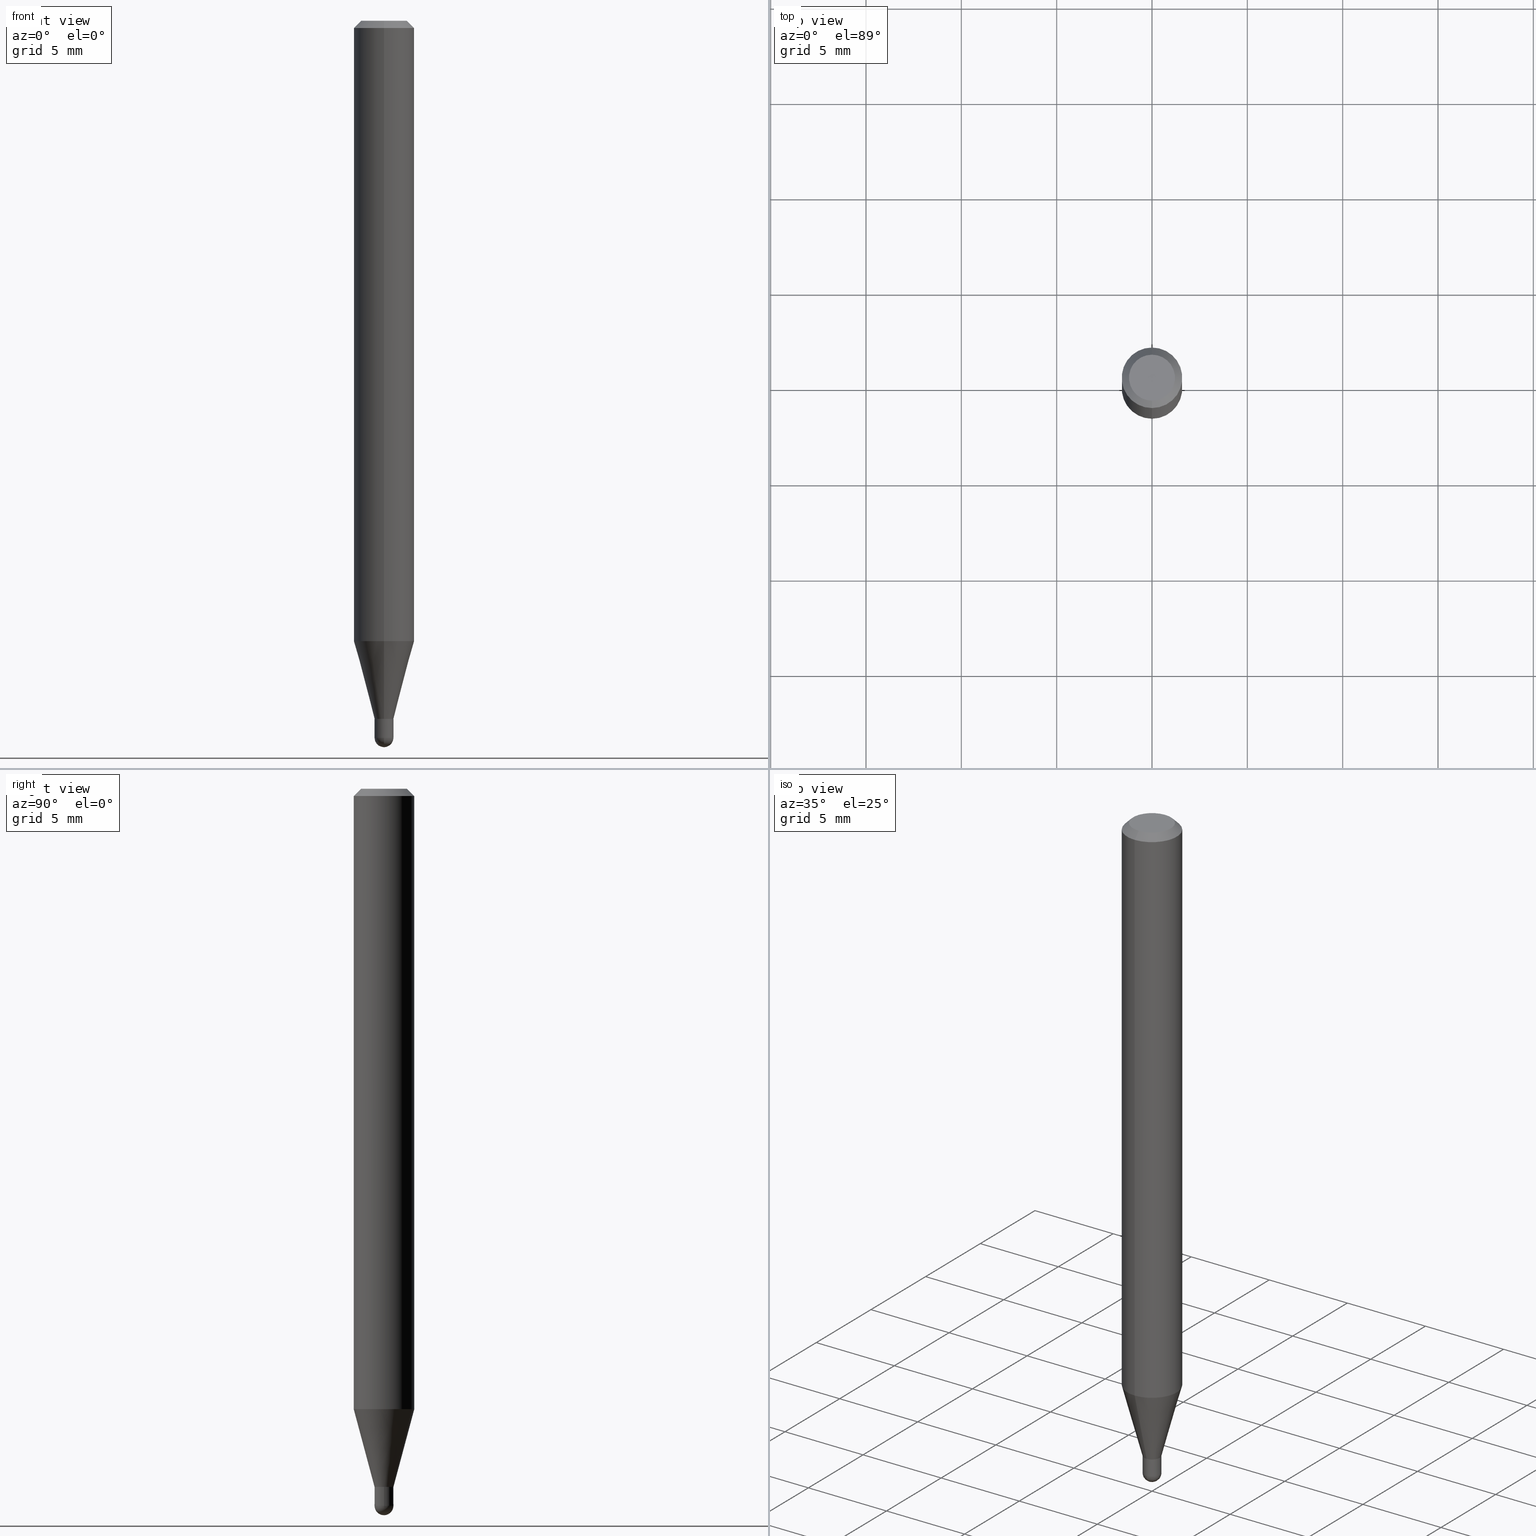
[diagram: canonical four-view strip — front | top / right | iso, engineering-drawing reading convention]
A machine part, canonical four-view strip (front | top / right | iso — engineering-drawing reading convention). The complete STEP part file that produces these views, byte-faithful:
ISO-10303-21;
HEADER;
FILE_DESCRIPTION (( 'STEP AP203' ),
    '1' );
FILE_NAME ('01396.STEP',
    '2024-03-07T20:20:00',
    ( '' ),
    ( '' ),
    'SwSTEP 2.0',
    'SolidWorks 2023',
    '' );
FILE_SCHEMA (( 'CONFIG_CONTROL_DESIGN' ));
ENDSEC;

DATA;
#1 = CIRCLE ( 'NONE', #137, 0.01949999999999999303 ) ;
#2 = CYLINDRICAL_SURFACE ( 'NONE', #18, 0.01949999999999992017 ) ;
#3 = ORIENTED_EDGE ( 'NONE', *, *, #442, .T. ) ;
#4 = CARTESIAN_POINT ( 'NONE',  ( 0.000000000000000000, 0.000000000000000000, 0.000000000000000000 ) ) ;
#5 = ORIENTED_EDGE ( 'NONE', *, *, #468, .F. ) ;
#6 = DIRECTION ( 'NONE',  ( -2.445468806185136597E-29, 3.491481338843145583E-15, 1.000000000000000000 ) ) ;
#7 = EDGE_CURVE ( 'NONE', #276, #39, #213, .T. ) ;
#8 = EDGE_LOOP ( 'NONE', ( #157, #43, #170, #509 ) ) ;
#9 = COORDINATED_UNIVERSAL_TIME_OFFSET ( 5, 0, .BEHIND. ) ;
#10 = FACE_OUTER_BOUND ( 'NONE', #76, .T. ) ;
#11 = CIRCLE ( 'NONE', #203, 0.01949999999999999303 ) ;
#12 = AXIS2_PLACEMENT_3D ( 'NONE', #214, #256, #99 ) ;
#13 = PERSON_AND_ORGANIZATION_ROLE ( 'creator' ) ;
#14 = DIRECTION ( 'NONE',  ( -2.445481119339966983E-29, 3.491463705704607270E-15, 1.000000000000000000 ) ) ;
#15 = APPROVAL_ROLE ( '' ) ;
#16 = CYLINDRICAL_SURFACE ( 'NONE', #201, 0.01949999999999999997 ) ;
#17 = CARTESIAN_POINT ( 'NONE',  ( 3.668221679009952927E-31, -5.237195558556913912E-17, -0.01500000000000000812 ) ) ;
#18 = AXIS2_PLACEMENT_3D ( 'NONE', #4, #164, #86 ) ;
#19 = PERSON_AND_ORGANIZATION_ROLE ( 'design_owner' ) ;
#20 = CARTESIAN_POINT ( 'NONE',  ( 3.525161033528562985E-29, -5.032944931773191280E-15, -1.441500000000000226 ) ) ;
#21 = PERSON_AND_ORGANIZATION_ROLE ( 'design_supplier' ) ;
#22 = DIRECTION ( 'NONE',  ( 2.445481119339966983E-29, -3.491463705704607270E-15, -1.000000000000000000 ) ) ;
#23 = EDGE_CURVE ( 'NONE', #234, #284, #141, .T. ) ;
#24 = APPROVAL_DATE_TIME ( #387, #453 ) ;
#25 = CARTESIAN_POINT ( 'NONE',  ( 4.440892098500936776E-16, 0.06249999999999551054, -1.281021815274543618 ) ) ;
#26 = ORIENTED_EDGE ( 'NONE', *, *, #332, .F. ) ;
#27 = AXIS2_PLACEMENT_3D ( 'NONE', #339, #417, #299 ) ;
#28 = AXIS2_PLACEMENT_3D ( 'NONE', #198, #359, #82 ) ;
#29 = DIRECTION ( 'NONE',  ( -2.445468806185136597E-29, 3.491481338843145583E-15, 1.000000000000000000 ) ) ;
#30 = ORIENTED_EDGE ( 'NONE', *, *, #287, .F. ) ;
#31 = CARTESIAN_POINT ( 'NONE',  ( 4.440892098500625669E-16, 0.06250000000000000000, -2.182164816065379544E-16 ) ) ;
#32 = APPROVAL ( #490, 'UNSPECIFIED' ) ;
#33 = DIRECTION ( 'NONE',  ( -2.445481119339966983E-29, 3.491463705704607270E-15, 1.000000000000000000 ) ) ;
#34 = ORIENTED_EDGE ( 'NONE', *, *, #104, .F. ) ;
#35 = AXIS2_PLACEMENT_3D ( 'NONE', #399, #405, #401 ) ;
#36 = CARTESIAN_POINT ( 'NONE',  ( 3.618848993293195667E-29, -5.171526183415615213E-15, -1.480500000000000149 ) ) ;
#37 = VERTEX_POINT ( 'NONE', #300 ) ;
#38 = DIRECTION ( 'NONE',  ( -1.000000000000000000, 6.982962677686265922E-15, -4.883557194083112340E-29 ) ) ;
#39 = VERTEX_POINT ( 'NONE', #414 ) ;
#40 = PRODUCT_DEFINITION ( 'UNKNOWN', '', #345, #69 ) ;
#41 = ADVANCED_FACE ( 'NONE', ( #215 ), #16, .T. ) ;
#42 = LINE ( 'NONE', #435, #314 ) ;
#43 = ORIENTED_EDGE ( 'NONE', *, *, #424, .T. ) ;
#44 = FACE_OUTER_BOUND ( 'NONE', #324, .T. ) ;
#45 = CIRCLE ( 'NONE', #87, 0.04749999999999999362 ) ;
#46 = LOCAL_TIME ( 15, 20, 0.000000000000000000, #259 ) ;
#47 = ORIENTED_EDGE ( 'NONE', *, *, #133, .F. ) ;
#48 = EDGE_CURVE ( 'NONE', #286, #284, #447, .T. ) ;
#49 = FACE_OUTER_BOUND ( 'NONE', #329, .T. ) ;
#50 = ORIENTED_EDGE ( 'NONE', *, *, #291, .T. ) ;
#51 =( NAMED_UNIT ( * ) PLANE_ANGLE_UNIT ( ) SI_UNIT ( $, .RADIAN. ) );
#52 = ORIENTED_EDGE ( 'NONE', *, *, #373, .T. ) ;
#53 = LENGTH_MEASURE_WITH_UNIT ( LENGTH_MEASURE( 0.02539999999999999897 ), #250 );
#54 = AXIS2_PLACEMENT_3D ( 'NONE', #212, #14, #377 ) ;
#55 = VERTEX_POINT ( 'NONE', #173 ) ;
#56 = AXIS2_PLACEMENT_3D ( 'NONE', #471, #6, #511 ) ;
#57 = CALENDAR_DATE ( 2024, 7, 3 ) ;
#58 = CARTESIAN_POINT ( 'NONE',  ( 0.000000000000000000, 0.000000000000000000, 0.000000000000000000 ) ) ;
#59 = EDGE_CURVE ( 'NONE', #286, #39, #144, .T. ) ;
#60 = APPROVAL_DATE_TIME ( #169, #32 ) ;
#61 = CARTESIAN_POINT ( 'NONE',  ( 3.132714662716507044E-29, -4.472641174246900354E-15, -1.281021815274543396 ) ) ;
#62 = DIRECTION ( 'NONE',  ( -2.445481119339966983E-29, 3.491463705704607270E-15, 1.000000000000000000 ) ) ;
#63 = CIRCLE ( 'NONE', #482, 0.06250000000000000000 ) ;
#64 = AXIS2_PLACEMENT_3D ( 'NONE', #253, #416, #451 ) ;
#65 = EDGE_CURVE ( 'NONE', #163, #39, #463, .T. ) ;
#66 = DIRECTION ( 'NONE',  ( -2.445468806185136597E-29, 3.491481338843145583E-15, 1.000000000000000000 ) ) ;
#67 = CARTESIAN_POINT ( 'NONE',  ( 3.665701847881856207E-29, -5.240804100152225240E-15, -1.500000000000000444 ) ) ;
#68 = PERSON_AND_ORGANIZATION ( #355, #315 ) ;
#69 = DESIGN_CONTEXT ( 'detailed design', #229, 'design' ) ;
#70 = DIRECTION ( 'NONE',  ( -6.982962677686266711E-15, -1.000000000000000000, 0.000000000000000000 ) ) ;
#71 = CIRCLE ( 'NONE', #304, 0.01949999999999992017 ) ;
#72 = CARTESIAN_POINT ( 'NONE',  ( -1.361677722148463895E-16, -0.01950000000000495434, -1.441500000000000448 ) ) ;
#73 = ORIENTED_EDGE ( 'NONE', *, *, #142, .T. ) ;
#74 = ADVANCED_FACE ( 'NONE', ( #487 ), #119, .T. ) ;
#75 = LINE ( 'NONE', #145, #238 ) ;
#76 = EDGE_LOOP ( 'NONE', ( #34, #237 ) ) ;
#77 = CARTESIAN_POINT ( 'NONE',  ( 3.525161033528562985E-29, -5.032944931773191280E-15, -1.441500000000000226 ) ) ;
#78 = DIRECTION ( 'NONE',  ( -2.445481119339966983E-29, 3.491463705704607270E-15, 1.000000000000000000 ) ) ;
#79 = VERTEX_POINT ( 'NONE', #336 ) ;
#80 = CARTESIAN_POINT ( 'NONE',  ( -0.01949999999999999997, 1.385558334732195360E-16, -9.591923425997065392E-31 ) ) ;
#81 = ORIENTED_EDGE ( 'NONE', *, *, #470, .T. ) ;
#82 = DIRECTION ( 'NONE',  ( -6.982962677686266711E-15, -1.000000000000000000, 3.491463705704607270E-15 ) ) ;
#83 = ORIENTED_EDGE ( 'NONE', *, *, #59, .F. ) ;
#84 = ADVANCED_FACE ( 'NONE', ( #10 ), #135, .F. ) ;
#85 = CIRCLE ( 'NONE', #152, 0.01949999999999992017 ) ;
#86 = DIRECTION ( 'NONE',  ( -6.982962677686266711E-15, -1.000000000000000000, 3.491463705704607270E-15 ) ) ;
#87 = AXIS2_PLACEMENT_3D ( 'NONE', #325, #479, #218 ) ;
#88 = ORIENTED_EDGE ( 'NONE', *, *, #415, .T. ) ;
#89 = DIRECTION ( 'NONE',  ( 0.000000000000000000, 0.000000000000000000, 1.000000000000000000 ) ) ;
#90 = EDGE_LOOP ( 'NONE', ( #207, #402, #327, #122 ) ) ;
#91 = EDGE_CURVE ( 'NONE', #284, #286, #63, .T. ) ;
#92 = PERSON_AND_ORGANIZATION ( #355, #315 ) ;
#93 = CARTESIAN_POINT ( 'NONE',  ( 1.361677722149174363E-16, 0.01949999999999496580, -1.441500000000000226 ) ) ;
#94 = CALENDAR_DATE ( 2024, 7, 3 ) ;
#95 = CC_DESIGN_PERSON_AND_ORGANIZATION_ASSIGNMENT ( #68, #348, ( #338 ) ) ;
#96 = DIRECTION ( 'NONE',  ( 1.839019923739647253E-15, 0.2588190451025315642, 0.9659258262890653146 ) ) ;
#97 = AXIS2_PLACEMENT_3D ( 'NONE', #187, #305, #70 ) ;
#98 = CC_DESIGN_APPROVAL ( #32, ( #40 ) ) ;
#99 = DIRECTION ( 'NONE',  ( 1.000000000000000000, -6.982962677686260400E-15, 0.000000000000000000 ) ) ;
#100 = ORIENTED_EDGE ( 'NONE', *, *, #476, .F. ) ;
#101 = PRODUCT_DEFINITION_SHAPE ( 'NONE', 'NONE',  #40 ) ;
#102 = DIRECTION ( 'NONE',  ( -2.445481119339966983E-29, 3.491463705704607270E-15, 1.000000000000000000 ) ) ;
#103 = CARTESIAN_POINT ( 'NONE',  ( 3.525161033528562985E-29, -5.032944931773191280E-15, -1.441500000000000226 ) ) ;
#104 = EDGE_CURVE ( 'NONE', #364, #79, #350, .T. ) ;
#105 = CARTESIAN_POINT ( 'NONE',  ( 3.620516567557095727E-29, -5.169138122157277171E-15, -1.480500000000000149 ) ) ;
#106 = AXIS2_PLACEMENT_3D ( 'NONE', #267, #342, #391 ) ;
#107 = FACE_OUTER_BOUND ( 'NONE', #398, .T. ) ;
#108 = CARTESIAN_POINT ( 'NONE',  ( 4.440892098500940720E-16, 0.06249999999999993755, -0.01500000000000022669 ) ) ;
#109 = ORIENTED_EDGE ( 'NONE', *, *, #23, .T. ) ;
#110 = CARTESIAN_POINT ( 'NONE',  ( 2.913225216616741220E-16, 0.01949999999999488948, -1.441500000000000448 ) ) ;
#111 = ORIENTED_EDGE ( 'NONE', *, *, #133, .T. ) ;
#112 = CIRCLE ( 'NONE', #378, 0.01950000000000007977 ) ;
#113 = CARTESIAN_POINT ( 'NONE',  ( 3.668221679009952927E-31, -5.237195558556913912E-17, -0.01500000000000000812 ) ) ;
#114 = CARTESIAN_POINT ( 'NONE',  ( 0.000000000000000000, 0.000000000000000000, 0.000000000000000000 ) ) ;
#115 = ORIENTED_EDGE ( 'NONE', *, *, #503, .T. ) ;
#116 = ADVANCED_FACE ( 'NONE', ( #449 ), #340, .T. ) ;
#117 = CARTESIAN_POINT ( 'NONE',  ( 0.01949999999999999303, -5.237222008264718177E-15, -1.480500000000000149 ) ) ;
#118 = EDGE_LOOP ( 'NONE', ( #360, #165, #321, #240 ) ) ;
#119 = CONICAL_SURFACE ( 'NONE', #410, 0.06250000000000000000, 0.7853981633974483900 ) ;
#120 = VECTOR ( 'NONE', #466, 39.37007874015748143 ) ;
#121 = APPROVAL_PERSON_ORGANIZATION ( #298, #32, #413 ) ;
#122 = ORIENTED_EDGE ( 'NONE', *, *, #142, .F. ) ;
#123 = CARTESIAN_POINT ( 'NONE',  ( 0.000000000000000000, 0.000000000000000000, 0.000000000000000000 ) ) ;
#124 = ORIENTED_EDGE ( 'NONE', *, *, #415, .F. ) ;
#125 = SPHERICAL_SURFACE ( 'NONE', #35, 0.01950000000000007977 ) ;
#126 = ORIENTED_EDGE ( 'NONE', *, *, #508, .F. ) ;
#127 = CIRCLE ( 'NONE', #362, 0.01949999999999999997 ) ;
#128 = DIRECTION ( 'NONE',  ( -6.982962677686266711E-15, -1.000000000000000000, 0.000000000000000000 ) ) ;
#129 = ORIENTED_EDGE ( 'NONE', *, *, #7, .T. ) ;
#130 = ADVANCED_FACE ( 'NONE', ( #381 ), #296, .T. ) ;
#131 = APPROVAL_DATE_TIME ( #301, #459 ) ;
#132 = FACE_OUTER_BOUND ( 'NONE', #311, .T. ) ;
#133 = EDGE_CURVE ( 'NONE', #475, #37, #1, .T. ) ;
#134 = PERSON_AND_ORGANIZATION ( #355, #315 ) ;
#135 = PLANE ( 'NONE',  #182 ) ;
#136 = CARTESIAN_POINT ( 'NONE',  ( 0.000000000000000000, 0.000000000000000000, 0.000000000000000000 ) ) ;
#137 = AXIS2_PLACEMENT_3D ( 'NONE', #105, #66, #222 ) ;
#138 = DIRECTION ( 'NONE',  ( -6.982962677686265922E-15, -1.000000000000000000, 4.370956789862821150E-15 ) ) ;
#139 = CC_DESIGN_APPROVAL ( #453, ( #338 ) ) ;
#140 = DATE_AND_TIME ( #57, #467 ) ;
#141 = LINE ( 'NONE', #258, #174 ) ;
#142 = EDGE_CURVE ( 'NONE', #434, #318, #489, .T. ) ;
#143 = FACE_OUTER_BOUND ( 'NONE', #8, .T. ) ;
#144 = LINE ( 'NONE', #446, #455 ) ;
#145 = CARTESIAN_POINT ( 'NONE',  ( -1.361677722148816418E-16, -0.01949999999999992017, 6.808354226123956654E-17 ) ) ;
#146 = CIRCLE ( 'NONE', #28, 0.04749999999999999362 ) ;
#147 = CARTESIAN_POINT ( 'NONE',  ( -1.326762908760038015E-16, -0.01900000000000503023, -1.441500000000000226 ) ) ;
#148 = CARTESIAN_POINT ( 'NONE',  ( 3.525143284115875149E-29, -5.032970349942394371E-15, -1.441500000000000226 ) ) ;
#149 = ORIENTED_EDGE ( 'NONE', *, *, #326, .F. ) ;
#150 = DIRECTION ( 'NONE',  ( -1.807323732225376682E-15, -0.2588190451025248473, 0.9659258262890670910 ) ) ;
#151 = CONICAL_SURFACE ( 'NONE', #64, 0.01949999999999992017, 0.2617993877991571794 ) ;
#152 = AXIS2_PLACEMENT_3D ( 'NONE', #443, #102, #335 ) ;
#153 = PERSON_AND_ORGANIZATION ( #355, #315 ) ;
#154 = LINE ( 'NONE', #31, #120 ) ;
#155 = ADVANCED_FACE ( 'NONE', ( #132 ), #293, .F. ) ;
#156 = DIRECTION ( 'NONE',  ( -6.982962677686265922E-15, -1.000000000000000000, 3.491463705704607270E-15 ) ) ;
#157 = ORIENTED_EDGE ( 'NONE', *, *, #23, .F. ) ;
#158 = DIRECTION ( 'NONE',  ( 1.000000000000000000, -6.982962677686265922E-15, 4.883557194083112340E-29 ) ) ;
#159 = ORIENTED_EDGE ( 'NONE', *, *, #508, .T. ) ;
#160 = AXIS2_PLACEMENT_3D ( 'NONE', #93, #233, #274 ) ;
#161 = CC_DESIGN_APPROVAL ( #459, ( #345 ) ) ;
#162 = DIRECTION ( 'NONE',  ( -2.445468806185136597E-29, 3.491481338843145583E-15, 1.000000000000000000 ) ) ;
#163 = VERTEX_POINT ( 'NONE', #108 ) ;
#164 = DIRECTION ( 'NONE',  ( -2.445481119339966983E-29, 3.491463705704607270E-15, 1.000000000000000000 ) ) ;
#165 = ORIENTED_EDGE ( 'NONE', *, *, #91, .T. ) ;
#166 = LINE ( 'NONE', #80, #439 ) ;
#167 = ORIENTED_EDGE ( 'NONE', *, *, #379, .F. ) ;
#168 = CIRCLE ( 'NONE', #418, 0.01899999999999999953 ) ;
#169 = DATE_AND_TIME ( #94, #246 ) ;
#170 = ORIENTED_EDGE ( 'NONE', *, *, #265, .T. ) ;
#171 = DIRECTION ( 'NONE',  ( 1.000000000000000000, 0.000000000000000000, 0.000000000000000000 ) ) ;
#172 = CARTESIAN_POINT ( 'NONE',  ( 3.668221679009952927E-31, -5.237195558556913912E-17, -0.01500000000000000812 ) ) ;
#173 = CARTESIAN_POINT ( 'NONE',  ( -0.01949999999999999997, -4.962498402576616111E-15, -1.441500000000000226 ) ) ;
#174 = VECTOR ( 'NONE', #96, 39.37007874015748854 ) ;
#175 = DIRECTION ( 'NONE',  ( -6.982962677686265922E-15, -1.000000000000000000, 3.491463705704607270E-15 ) ) ;
#176 = CONICAL_SURFACE ( 'NONE', #431, 0.01899999999999999953, 0.7853981633974718157 ) ;
#177 = DATE_TIME_ROLE ( 'creation_date' ) ;
#178 = DIRECTION ( 'NONE',  ( -2.445468806185136597E-29, 3.491481338843145583E-15, 1.000000000000000000 ) ) ;
#179 = COORDINATED_UNIVERSAL_TIME_OFFSET ( 5, 0, .BEHIND. ) ;
#180 = DIRECTION ( 'NONE',  ( -4.937700262164664794E-15, -0.7071067811865617836, 0.7071067811865333619 ) ) ;
#181 = CARTESIAN_POINT ( 'NONE',  ( 3.316907271900976096E-16, 0.04749999999999999362, -1.702751046039246706E-16 ) ) ;
#182 = AXIS2_PLACEMENT_3D ( 'NONE', #103, #488, #175 ) ;
#183 = AXIS2_PLACEMENT_3D ( 'NONE', #148, #29, #390 ) ;
#184 = ORIENTED_EDGE ( 'NONE', *, *, #48, .T. ) ;
#185 = AXIS2_PLACEMENT_3D ( 'NONE', #136, #89, #171 ) ;
#186 = DIRECTION ( 'NONE',  ( -6.982962677686265922E-15, -1.000000000000000000, 0.000000000000000000 ) ) ;
#187 = CARTESIAN_POINT ( 'NONE',  ( 3.525161033528563545E-29, -5.032944931773192069E-15, -1.441500000000000448 ) ) ;
#188 = FACE_OUTER_BOUND ( 'NONE', #436, .T. ) ;
#189 = EDGE_CURVE ( 'NONE', #284, #163, #154, .T. ) ;
#190 = PRODUCT ( '01396', '01396', '', ( #445 ) ) ;
#191 = VERTEX_POINT ( 'NONE', #316 ) ;
#192 = AXIS2_PLACEMENT_3D ( 'NONE', #181, #351, #507 ) ;
#193 = CARTESIAN_POINT ( 'NONE',  ( 3.620516567557095727E-29, -5.169138122157277171E-15, -1.480500000000000149 ) ) ;
#194 = ORIENTED_EDGE ( 'NONE', *, *, #491, .F. ) ;
#195 = DIRECTION ( 'NONE',  ( 1.000000000000000000, -6.982962677686258033E-15, 0.000000000000000000 ) ) ;
#196 = ORIENTED_EDGE ( 'NONE', *, *, #319, .T. ) ;
#197 = DIMENSIONAL_EXPONENTS ( 1.000000000000000000, 0.000000000000000000, 0.000000000000000000, 0.000000000000000000, 0.000000000000000000, 0.000000000000000000, 0.000000000000000000 ) ;
#198 = CARTESIAN_POINT ( 'NONE',  ( 2.166979254474106188E-46, -3.093840863532492253E-32, -8.861157165911678374E-18 ) ) ;
#199 = ORIENTED_EDGE ( 'NONE', *, *, #319, .F. ) ;
#200 = APPLICATION_CONTEXT ( 'configuration controlled 3d designs of mechanical parts and assemblies' ) ;
#201 = AXIS2_PLACEMENT_3D ( 'NONE', #58, #178, #420 ) ;
#202 = ADVANCED_FACE ( 'NONE', ( #344 ), #297, .T. ) ;
#203 = AXIS2_PLACEMENT_3D ( 'NONE', #193, #162, #323 ) ;
#204 = LOCAL_TIME ( 15, 20, 0.000000000000000000, #221 ) ;
#205 = DIRECTION ( 'NONE',  ( -6.982962677686266711E-15, -1.000000000000000000, 0.000000000000000000 ) ) ;
#206 = ORIENTED_EDGE ( 'NONE', *, *, #48, .F. ) ;
#207 = ORIENTED_EDGE ( 'NONE', *, *, #281, .F. ) ;
#208 =( CONVERSION_BASED_UNIT ( 'INCH', #53 ) LENGTH_UNIT ( ) NAMED_UNIT ( #197 ) );
#209 = ADVANCED_FACE ( 'NONE', ( #429 ), #462, .T. ) ;
#210 = ORIENTED_EDGE ( 'NONE', *, *, #281, .T. ) ;
#211 = APPROVAL_STATUS ( 'not_yet_approved' ) ;
#212 = CARTESIAN_POINT ( 'NONE',  ( 3.132714662716507044E-29, -4.472641174246900354E-15, -1.281021815274543396 ) ) ;
#213 = LINE ( 'NONE', #257, #343 ) ;
#214 = CARTESIAN_POINT ( 'NONE',  ( 3.620516567557095727E-29, -5.169138122157277171E-15, -1.480500000000000149 ) ) ;
#215 = FACE_OUTER_BOUND ( 'NONE', #290, .T. ) ;
#216 = CC_DESIGN_DATE_AND_TIME_ASSIGNMENT ( #425, #384, ( #338 ) ) ;
#217 = AXIS2_PLACEMENT_3D ( 'NONE', #172, #62, #409 ) ;
#218 = DIRECTION ( 'NONE',  ( -6.982962677686266711E-15, -1.000000000000000000, 3.491463705704607270E-15 ) ) ;
#219 = CIRCLE ( 'NONE', #465, 0.01950000000000007977 ) ;
#220 = DIRECTION ( 'NONE',  ( 1.000000000000000000, -6.982962677686265922E-15, 4.876176775795935793E-29 ) ) ;
#221 = COORDINATED_UNIVERSAL_TIME_OFFSET ( 5, 0, .BEHIND. ) ;
#222 = DIRECTION ( 'NONE',  ( 1.000000000000000000, -6.982962677686260400E-15, 0.000000000000000000 ) ) ;
#223 = CARTESIAN_POINT ( 'NONE',  ( 3.525161033528562985E-29, -5.032944931773191280E-15, -1.441500000000000226 ) ) ;
#224 = ADVANCED_FACE ( 'NONE', ( #349 ), #383, .F. ) ;
#225 = EDGE_CURVE ( 'NONE', #242, #55, #404, .T. ) ;
#226 = VERTEX_POINT ( 'NONE', #72 ) ;
#227 = CARTESIAN_POINT ( 'NONE',  ( -1.361677722148463895E-16, -0.01950000000000495434, -1.441500000000000448 ) ) ;
#228 = VECTOR ( 'NONE', #473, 39.37007874015748143 ) ;
#229 = APPLICATION_CONTEXT ( 'configuration controlled 3d designs of mechanical parts and assemblies' ) ;
#230 = CARTESIAN_POINT ( 'NONE',  ( -4.364351673553604601E-16, -0.06250000000000449640, -1.281021815274543174 ) ) ;
#231 = ORIENTED_EDGE ( 'NONE', *, *, #341, .F. ) ;
#232 = EDGE_CURVE ( 'NONE', #254, #37, #112, .T. ) ;
#233 = DIRECTION ( 'NONE',  ( 2.438088387897960049E-29, -3.491481338843145188E-15, -1.000000000000000000 ) ) ;
#234 = VERTEX_POINT ( 'NONE', #110 ) ;
#235 = PRODUCT_RELATED_PRODUCT_CATEGORY ( 'detail', '', ( #190 ) ) ;
#236 = CARTESIAN_POINT ( 'NONE',  ( -1.361677722148462416E-16, -0.01950000000000520761, -1.480500000000000149 ) ) ;
#237 = ORIENTED_EDGE ( 'NONE', *, *, #266, .F. ) ;
#238 = VECTOR ( 'NONE', #33, 39.37007874015748143 ) ;
#239 = CARTESIAN_POINT ( 'NONE',  ( 1.385558334732537282E-16, 0.01949999999999482009, -1.441000000000000281 ) ) ;
#240 = ORIENTED_EDGE ( 'NONE', *, *, #65, .F. ) ;
#241 = LINE ( 'NONE', #397, #504 ) ;
#242 = VERTEX_POINT ( 'NONE', #388 ) ;
#243 = DIRECTION ( 'NONE',  ( -2.445481119339966983E-29, 3.491463705704607270E-15, 1.000000000000000000 ) ) ;
#244 = ORIENTED_EDGE ( 'NONE', *, *, #424, .F. ) ;
#245 = CIRCLE ( 'NONE', #255, 0.01949999999999992017 ) ;
#246 = LOCAL_TIME ( 15, 20, 0.000000000000000000, #9 ) ;
#247 = CARTESIAN_POINT ( 'NONE',  ( 3.668221679009952927E-31, -5.237195558556913912E-17, -0.01500000000000000812 ) ) ;
#248 = ORIENTED_EDGE ( 'NONE', *, *, #65, .T. ) ;
#249 = ADVANCED_FACE ( 'NONE', ( #107 ), #176, .T. ) ;
#250 =( LENGTH_UNIT ( ) NAMED_UNIT ( * ) SI_UNIT ( $, .METRE. ) );
#251 = VERTEX_POINT ( 'NONE', #275 ) ;
#252 = UNCERTAINTY_MEASURE_WITH_UNIT (LENGTH_MEASURE( 1.000000000000000082E-05 ), #208, 'distance_accuracy_value', 'NONE');
#253 = CARTESIAN_POINT ( 'NONE',  ( 3.525161033528563545E-29, -5.032944931773192069E-15, -1.441500000000000448 ) ) ;
#254 = VERTEX_POINT ( 'NONE', #67 ) ;
#255 = AXIS2_PLACEMENT_3D ( 'NONE', #440, #78, #289 ) ;
#256 = DIRECTION ( 'NONE',  ( -2.445468806185136597E-29, 3.491481338843145583E-15, 1.000000000000000000 ) ) ;
#257 = CARTESIAN_POINT ( 'NONE',  ( -4.287811248607203282E-16, -0.06250000000000005551, -0.01499999999999979128 ) ) ;
#258 = CARTESIAN_POINT ( 'NONE',  ( 1.385558334732541966E-16, 0.01949999999999488948, -1.441500000000000448 ) ) ;
#259 = COORDINATED_UNIVERSAL_TIME_OFFSET ( 5, 0, .BEHIND. ) ;
#260 = DIRECTION ( 'NONE',  ( -2.445468806185136597E-29, 3.491481338843145583E-15, 1.000000000000000000 ) ) ;
#261 = AXIS2_PLACEMENT_3D ( 'NONE', #492, #260, #220 ) ;
#262 = CIRCLE ( 'NONE', #411, 0.06250000000000000000 ) ;
#263 = DIRECTION ( 'NONE',  ( -2.445481119339966983E-29, 3.491463705704607270E-15, 1.000000000000000000 ) ) ;
#264 = CIRCLE ( 'NONE', #12, 0.01949999999999999303 ) ;
#265 = EDGE_CURVE ( 'NONE', #226, #286, #495, .T. ) ;
#266 = EDGE_CURVE ( 'NONE', #79, #364, #168, .T. ) ;
#267 = CARTESIAN_POINT ( 'NONE',  ( 0.000000000000000000, 0.000000000000000000, 0.000000000000000000 ) ) ;
#268 = EDGE_LOOP ( 'NONE', ( #184, #441, #149, #83 ) ) ;
#269 = DIRECTION ( 'NONE',  ( 1.000000000000000000, -7.105427357601001070E-15, 4.926315508542082329E-29 ) ) ;
#270 = DIRECTION ( 'NONE',  ( 6.982962677686265922E-15, 1.000000000000000000, -3.483106191921935554E-15 ) ) ;
#271 = AXIS2_PLACEMENT_3D ( 'NONE', #331, #486, #295 ) ;
#272 = AXIS2_PLACEMENT_3D ( 'NONE', #114, #423, #500 ) ;
#273 = ORIENTED_EDGE ( 'NONE', *, *, #225, .F. ) ;
#274 = DIRECTION ( 'NONE',  ( -1.000000000000000000, 6.982962677686265922E-15, -4.876176775795935793E-29 ) ) ;
#275 = CARTESIAN_POINT ( 'NONE',  ( 3.840629472727447874E-16, 0.04749999999999999362, -1.747056831868805136E-16 ) ) ;
#276 = VERTEX_POINT ( 'NONE', #428 ) ;
#277 = ADVANCED_FACE ( 'NONE', ( #312 ), #456, .T. ) ;
#278 = LINE ( 'NONE', #430, #228 ) ;
#279 = ORIENTED_EDGE ( 'NONE', *, *, #341, .T. ) ;
#280 = CYLINDRICAL_SURFACE ( 'NONE', #394, 0.06250000000000000000 ) ;
#281 = EDGE_CURVE ( 'NONE', #79, #434, #385, .T. ) ;
#282 = ORIENTED_EDGE ( 'NONE', *, *, #232, .T. ) ;
#283 = DIRECTION ( 'NONE',  ( -6.982962677686265922E-15, -1.000000000000000000, 0.000000000000000000 ) ) ;
#284 = VERTEX_POINT ( 'NONE', #25 ) ;
#285 = DIRECTION ( 'NONE',  ( -2.445468806185136877E-29, 3.491481338843145188E-15, 1.000000000000000000 ) ) ;
#286 = VERTEX_POINT ( 'NONE', #230 ) ;
#287 = EDGE_CURVE ( 'NONE', #364, #318, #499, .T. ) ;
#288 = APPROVAL_PERSON_ORGANIZATION ( #153, #453, #501 ) ;
#289 = DIRECTION ( 'NONE',  ( -6.982962677686266711E-15, -1.000000000000000000, 0.000000000000000000 ) ) ;
#290 = EDGE_LOOP ( 'NONE', ( #199, #159, #279, #3, #406 ) ) ;
#291 = EDGE_CURVE ( 'NONE', #226, #318, #75, .T. ) ;
#292 = PERSON_AND_ORGANIZATION ( #355, #315 ) ;
#293 = PLANE ( 'NONE',  #160 ) ;
#294 =( NAMED_UNIT ( * ) SI_UNIT ( $, .STERADIAN. ) SOLID_ANGLE_UNIT ( ) );
#295 = DIRECTION ( 'NONE',  ( -6.982962677686266711E-15, -1.000000000000000000, 0.000000000000000000 ) ) ;
#296 = CONICAL_SURFACE ( 'NONE', #361, 0.01899999999999999953, 0.7853981633974718157 ) ;
#297 = CONICAL_SURFACE ( 'NONE', #97, 0.01949999999999992017, 0.2617993877991571794 ) ;
#298 = PERSON_AND_ORGANIZATION ( #355, #315 ) ;
#299 = DIRECTION ( 'NONE',  ( -6.982962677686265922E-15, -1.000000000000000000, 0.000000000000000000 ) ) ;
#300 = CARTESIAN_POINT ( 'NONE',  ( 1.385558334732559716E-16, 0.01949999999999486866, -1.480500000000000149 ) ) ;
#301 = DATE_AND_TIME ( #493, #46 ) ;
#302 = DIRECTION ( 'NONE',  ( -6.982962677686265922E-15, -1.000000000000000000, 0.000000000000000000 ) ) ;
#303 = ADVANCED_FACE ( 'NONE', ( #188 ), #307, .F. ) ;
#304 = AXIS2_PLACEMENT_3D ( 'NONE', #481, #363, #128 ) ;
#305 = DIRECTION ( 'NONE',  ( -2.445481119339966983E-29, 3.491463705704607270E-15, 1.000000000000000000 ) ) ;
#306 =( GEOMETRIC_REPRESENTATION_CONTEXT ( 3 ) GLOBAL_UNCERTAINTY_ASSIGNED_CONTEXT ( ( #252 ) ) GLOBAL_UNIT_ASSIGNED_CONTEXT ( ( #208, #51, #294 ) ) REPRESENTATION_CONTEXT ( 'NONE', 'WORKASPACE' ) );
#307 = PLANE ( 'NONE',  #192 ) ;
#308 = EDGE_LOOP ( 'NONE', ( #444, #100, #512, #248 ) ) ;
#309 = SECURITY_CLASSIFICATION_LEVEL ( 'unclassified' ) ;
#310 = DIRECTION ( 'NONE',  ( 7.105427357601000281E-15, 1.000000000000000000, 0.000000000000000000 ) ) ;
#311 = EDGE_LOOP ( 'NONE', ( #386, #81 ) ) ;
#312 = FACE_OUTER_BOUND ( 'NONE', #368, .T. ) ;
#313 = CC_DESIGN_PERSON_AND_ORGANIZATION_ASSIGNMENT ( #134, #19, ( #190 ) ) ;
#314 = VECTOR ( 'NONE', #320, 39.37007874015748143 ) ;
#315 = ORGANIZATION ( 'UNSPECIFIED', 'UNSPECIFIED', '' ) ;
#316 = CARTESIAN_POINT ( 'NONE',  ( -0.01949999999999999303, -4.962498402576616111E-15, -1.480500000000000149 ) ) ;
#317 = DIRECTION ( 'NONE',  ( -2.445468806185136597E-29, 3.491481338843145583E-15, 1.000000000000000000 ) ) ;
#318 = VERTEX_POINT ( 'NONE', #460 ) ;
#319 = EDGE_CURVE ( 'NONE', #191, #55, #166, .T. ) ;
#320 = DIRECTION ( 'NONE',  ( 4.937700262164548042E-15, 0.7071067811865451302, -0.7071067811865499042 ) ) ;
#321 = ORIENTED_EDGE ( 'NONE', *, *, #59, .T. ) ;
#322 = AXIS2_PLACEMENT_3D ( 'NONE', #36, #158, #283 ) ;
#323 = DIRECTION ( 'NONE',  ( 1.000000000000000000, -6.982962677686260400E-15, 0.000000000000000000 ) ) ;
#324 = EDGE_LOOP ( 'NONE', ( #26, #366, #50, #88 ) ) ;
#325 = CARTESIAN_POINT ( 'NONE',  ( 2.166979254474106188E-46, -3.093840863532492253E-32, -8.861157165911678374E-18 ) ) ;
#326 = EDGE_CURVE ( 'NONE', #39, #163, #262, .T. ) ;
#327 = ORIENTED_EDGE ( 'NONE', *, *, #287, .T. ) ;
#328 = FACE_OUTER_BOUND ( 'NONE', #268, .T. ) ;
#329 = EDGE_LOOP ( 'NONE', ( #375, #282, #47, #231 ) ) ;
#330 = CC_DESIGN_DATE_AND_TIME_ASSIGNMENT ( #140, #177, ( #40 ) ) ;
#331 = CARTESIAN_POINT ( 'NONE',  ( 3.523938292968893967E-29, -5.031199199920339578E-15, -1.441000000000000281 ) ) ;
#332 = EDGE_CURVE ( 'NONE', #234, #434, #278, .T. ) ;
#333 = PERSON_AND_ORGANIZATION ( #355, #315 ) ;
#334 = DIRECTION ( 'NONE',  ( 6.982962677686265922E-15, 1.000000000000000000, -3.483106191921935554E-15 ) ) ;
#335 = DIRECTION ( 'NONE',  ( -6.982962677686266711E-15, -1.000000000000000000, 0.000000000000000000 ) ) ;
#336 = CARTESIAN_POINT ( 'NONE',  ( 1.367794766338542404E-16, 0.01899999999999496536, -1.441500000000000226 ) ) ;
#337 = AXIS2_PLACEMENT_3D ( 'NONE', #113, #22, #270 ) ;
#338 = SECURITY_CLASSIFICATION ( '', '', #309 ) ;
#339 = CARTESIAN_POINT ( 'NONE',  ( 3.525161033528562985E-29, -5.032944931773191280E-15, -1.441500000000000226 ) ) ;
#340 = CYLINDRICAL_SURFACE ( 'NONE', #261, 0.01949999999999999997 ) ;
#341 = EDGE_CURVE ( 'NONE', #432, #475, #11, .T. ) ;
#342 = DIRECTION ( 'NONE',  ( -2.445481119339966983E-29, 3.491463705704607270E-15, 1.000000000000000000 ) ) ;
#343 = VECTOR ( 'NONE', #371, 39.37007874015748143 ) ;
#344 = FACE_OUTER_BOUND ( 'NONE', #478, .T. ) ;
#345 = PRODUCT_DEFINITION_FORMATION_WITH_SPECIFIED_SOURCE ( 'ANY', '', #190, .NOT_KNOWN. ) ;
#346 = ORIENTED_EDGE ( 'NONE', *, *, #491, .T. ) ;
#347 = CARTESIAN_POINT ( 'NONE',  ( 1.350031197944542842E-16, 0.01899999999999496536, -1.441500000000000226 ) ) ;
#348 = PERSON_AND_ORGANIZATION_ROLE ( 'classification_officer' ) ;
#349 = FACE_OUTER_BOUND ( 'NONE', #395, .T. ) ;
#350 = CIRCLE ( 'NONE', #27, 0.01899999999999999953 ) ;
#351 = DIRECTION ( 'NONE',  ( 2.445481119339966703E-29, -3.491463705704607270E-15, -1.000000000000000000 ) ) ;
#352 = VECTOR ( 'NONE', #426, 39.37007874015748143 ) ;
#353 = ORIENTED_EDGE ( 'NONE', *, *, #104, .T. ) ;
#354 = DIRECTION ( 'NONE',  ( -6.982962677686265922E-15, -1.000000000000000000, 3.483106191921935554E-15 ) ) ;
#355 = PERSON ( 'UNSPECIFIED', 'UNSPECIFIED', 'UNSPECIFIED', ('UNSPECIFIED'), ('UNSPECIFIED'), ('UNSPECIFIED') ) ;
#356 = ADVANCED_FACE ( 'NONE', ( #357 ), #125, .T. ) ;
#357 = FACE_OUTER_BOUND ( 'NONE', #358, .T. ) ;
#358 = EDGE_LOOP ( 'NONE', ( #407, #52, #126, #167 ) ) ;
#359 = DIRECTION ( 'NONE',  ( -2.445481119339966983E-29, 3.491463705704607270E-15, 1.000000000000000000 ) ) ;
#360 = ORIENTED_EDGE ( 'NONE', *, *, #189, .F. ) ;
#361 = AXIS2_PLACEMENT_3D ( 'NONE', #20, #494, #302 ) ;
#362 = AXIS2_PLACEMENT_3D ( 'NONE', #433, #317, #195 ) ;
#363 = DIRECTION ( 'NONE',  ( -2.445481119339966983E-29, 3.491463705704607270E-15, 1.000000000000000000 ) ) ;
#364 = VERTEX_POINT ( 'NONE', #365 ) ;
#365 = CARTESIAN_POINT ( 'NONE',  ( -1.326762908760038015E-16, -0.01900000000000503023, -1.441500000000000226 ) ) ;
#366 = ORIENTED_EDGE ( 'NONE', *, *, #503, .F. ) ;
#367 = APPLICATION_PROTOCOL_DEFINITION ( 'international standard', 'config_control_design', 1994, #200 ) ;
#368 = EDGE_LOOP ( 'NONE', ( #194, #129, #480, #5 ) ) ;
#369 = VECTOR ( 'NONE', #150, 39.37007874015748143 ) ;
#370 = PERSON_AND_ORGANIZATION_ROLE ( 'creator' ) ;
#371 = DIRECTION ( 'NONE',  ( -4.851104656540964275E-15, -0.7071067811865500152, -0.7071067811865450192 ) ) ;
#372 = CC_DESIGN_PERSON_AND_ORGANIZATION_ASSIGNMENT ( #333, #21, ( #345 ) ) ;
#373 = EDGE_CURVE ( 'NONE', #254, #432, #219, .T. ) ;
#374 = APPLICATION_PROTOCOL_DEFINITION ( 'international standard', 'config_control_design', 1994, #229 ) ;
#375 = ORIENTED_EDGE ( 'NONE', *, *, #373, .F. ) ;
#376 = COORDINATED_UNIVERSAL_TIME_OFFSET ( 5, 0, .BEHIND. ) ;
#377 = DIRECTION ( 'NONE',  ( -6.982962677686265922E-15, -1.000000000000000000, 4.370956789862821150E-15 ) ) ;
#378 = AXIS2_PLACEMENT_3D ( 'NONE', #458, #269, #310 ) ;
#379 = EDGE_CURVE ( 'NONE', #37, #191, #498, .T. ) ;
#380 = MANIFOLD_SOLID_BREP ( 'Body-Move/Copy2[2]', #496 ) ;
#381 = FACE_OUTER_BOUND ( 'NONE', #90, .T. ) ;
#382 = SHAPE_DEFINITION_REPRESENTATION ( #101, #450 ) ;
#383 = CYLINDRICAL_SURFACE ( 'NONE', #106, 0.01949999999999992017 ) ;
#384 = DATE_TIME_ROLE ( 'classification_date' ) ;
#385 = LINE ( 'NONE', #347, #352 ) ;
#386 = ORIENTED_EDGE ( 'NONE', *, *, #225, .T. ) ;
#387 = DATE_AND_TIME ( #464, #474 ) ;
#388 = CARTESIAN_POINT ( 'NONE',  ( 0.01949999999999999997, -5.169138122157276382E-15, -1.441500000000000226 ) ) ;
#389 = CC_DESIGN_PERSON_AND_ORGANIZATION_ASSIGNMENT ( #92, #370, ( #345 ) ) ;
#390 = DIRECTION ( 'NONE',  ( 1.000000000000000000, -6.982962677686258033E-15, 0.000000000000000000 ) ) ;
#391 = DIRECTION ( 'NONE',  ( -6.982962677686266711E-15, -1.000000000000000000, 3.491463705704607270E-15 ) ) ;
#392 = CARTESIAN_POINT ( 'NONE',  ( 3.618848993293195667E-29, -5.171526183415615213E-15, -1.480500000000000149 ) ) ;
#393 = ADVANCED_FACE ( 'NONE', ( #328 ), #280, .T. ) ;
#394 = AXIS2_PLACEMENT_3D ( 'NONE', #123, #243, #156 ) ;
#395 = EDGE_LOOP ( 'NONE', ( #244, #454, #73, #422 ) ) ;
#396 = MANIFOLD_SOLID_BREP ( 'Body-Move/Copy2[1]', #403 ) ;
#397 = CARTESIAN_POINT ( 'NONE',  ( 0.01949999999999999997, -1.361677722148821841E-16, 9.508544712802074656E-31 ) ) ;
#398 = EDGE_LOOP ( 'NONE', ( #353, #210, #124, #30 ) ) ;
#399 = CARTESIAN_POINT ( 'NONE',  ( 3.618848993293195667E-29, -5.171526183415615213E-15, -1.480500000000000149 ) ) ;
#400 = ORIENTED_EDGE ( 'NONE', *, *, #442, .F. ) ;
#401 = DIRECTION ( 'NONE',  ( -6.982962677686265922E-15, -1.000000000000000000, 0.000000000000000000 ) ) ;
#402 = ORIENTED_EDGE ( 'NONE', *, *, #266, .T. ) ;
#403 = CLOSED_SHELL ( 'NONE', ( #116, #408, #155, #356, #41 ) ) ;
#404 = CIRCLE ( 'NONE', #183, 0.01949999999999999997 ) ;
#405 = DIRECTION ( 'NONE',  ( 1.000000000000000000, -6.982962677686265922E-15, 4.883557194083112340E-29 ) ) ;
#406 = ORIENTED_EDGE ( 'NONE', *, *, #470, .F. ) ;
#407 = ORIENTED_EDGE ( 'NONE', *, *, #232, .F. ) ;
#408 = ADVANCED_FACE ( 'NONE', ( #49 ), #437, .T. ) ;
#409 = DIRECTION ( 'NONE',  ( -6.982962677686265922E-15, -1.000000000000000000, 3.483106191921935554E-15 ) ) ;
#410 = AXIS2_PLACEMENT_3D ( 'NONE', #17, #452, #334 ) ;
#411 = AXIS2_PLACEMENT_3D ( 'NONE', #247, #477, #354 ) ;
#412 = DIRECTION ( 'NONE',  ( -2.445481119339966983E-29, 3.491463705704607270E-15, 1.000000000000000000 ) ) ;
#413 = APPROVAL_ROLE ( '' ) ;
#414 = CARTESIAN_POINT ( 'NONE',  ( -4.364351673553912750E-16, -0.06250000000000005551, -0.01499999999999979128 ) ) ;
#415 = EDGE_CURVE ( 'NONE', #318, #434, #71, .T. ) ;
#416 = DIRECTION ( 'NONE',  ( -2.445481119339966983E-29, 3.491463705704607270E-15, 1.000000000000000000 ) ) ;
#417 = DIRECTION ( 'NONE',  ( -2.445481119339966983E-29, 3.491463705704607270E-15, 1.000000000000000000 ) ) ;
#418 = AXIS2_PLACEMENT_3D ( 'NONE', #223, #502, #186 ) ;
#419 = CC_DESIGN_PERSON_AND_ORGANIZATION_ASSIGNMENT ( #292, #13, ( #40 ) ) ;
#420 = DIRECTION ( 'NONE',  ( 1.000000000000000000, -6.982962677686265922E-15, 4.876176775795935793E-29 ) ) ;
#421 = DIRECTION ( 'NONE',  ( -2.445481119339966983E-29, 3.491463705704607270E-15, 1.000000000000000000 ) ) ;
#422 = ORIENTED_EDGE ( 'NONE', *, *, #291, .F. ) ;
#423 = DIRECTION ( 'NONE',  ( -2.445481119339966983E-29, 3.491463705704607270E-15, 1.000000000000000000 ) ) ;
#424 = EDGE_CURVE ( 'NONE', #234, #226, #245, .T. ) ;
#425 = DATE_AND_TIME ( #505, #204 ) ;
#426 = DIRECTION ( 'NONE',  ( 5.024295867788180719E-15, 0.7071067811865666686, 0.7071067811865284769 ) ) ;
#427 = CC_DESIGN_SECURITY_CLASSIFICATION ( #338, ( #345 ) ) ;
#428 = CARTESIAN_POINT ( 'NONE',  ( -3.773273898774340269E-16, -0.04749999999999999362, 1.569833688550571415E-16 ) ) ;
#429 = FACE_OUTER_BOUND ( 'NONE', #118, .T. ) ;
#430 = CARTESIAN_POINT ( 'NONE',  ( 1.385558334732189444E-16, 0.01949999999999992017, -6.808354226123956654E-17 ) ) ;
#431 = AXIS2_PLACEMENT_3D ( 'NONE', #77, #421, #469 ) ;
#432 = VERTEX_POINT ( 'NONE', #236 ) ;
#433 = CARTESIAN_POINT ( 'NONE',  ( 3.525143284115875149E-29, -5.032970349942394371E-15, -1.441500000000000226 ) ) ;
#434 = VERTEX_POINT ( 'NONE', #239 ) ;
#435 = CARTESIAN_POINT ( 'NONE',  ( 4.364351673553919652E-16, 0.06249999999999995143, -0.01500000000000022669 ) ) ;
#436 = EDGE_LOOP ( 'NONE', ( #483, #346 ) ) ;
#437 = SPHERICAL_SURFACE ( 'NONE', #322, 0.01950000000000007977 ) ;
#438 = ORIENTED_EDGE ( 'NONE', *, *, #379, .T. ) ;
#439 = VECTOR ( 'NONE', #510, 39.37007874015748143 ) ;
#440 = CARTESIAN_POINT ( 'NONE',  ( 3.525161033528563545E-29, -5.032944931773192069E-15, -1.441500000000000448 ) ) ;
#441 = ORIENTED_EDGE ( 'NONE', *, *, #189, .T. ) ;
#442 = EDGE_CURVE ( 'NONE', #475, #242, #241, .T. ) ;
#443 = CARTESIAN_POINT ( 'NONE',  ( 3.525161033528563545E-29, -5.032944931773192069E-15, -1.441500000000000448 ) ) ;
#444 = ORIENTED_EDGE ( 'NONE', *, *, #7, .F. ) ;
#445 = MECHANICAL_CONTEXT ( 'NONE', #200, 'mechanical' ) ;
#446 = CARTESIAN_POINT ( 'NONE',  ( -4.364351673553916201E-16, -0.06250000000000000000, 2.182164816065379544E-16 ) ) ;
#447 = CIRCLE ( 'NONE', #54, 0.06250000000000000000 ) ;
#448 = VECTOR ( 'NONE', #180, 39.37007874015748143 ) ;
#449 = FACE_OUTER_BOUND ( 'NONE', #461, .T. ) ;
#450 = ADVANCED_BREP_SHAPE_REPRESENTATION ( '01396', ( #396, #380, #185 ), #306 ) ;
#451 = DIRECTION ( 'NONE',  ( -6.982962677686266711E-15, -1.000000000000000000, 0.000000000000000000 ) ) ;
#452 = DIRECTION ( 'NONE',  ( 2.445481119339966983E-29, -3.491463705704607270E-15, -1.000000000000000000 ) ) ;
#453 = APPROVAL ( #457, 'UNSPECIFIED' ) ;
#454 = ORIENTED_EDGE ( 'NONE', *, *, #332, .T. ) ;
#455 = VECTOR ( 'NONE', #412, 39.37007874015748143 ) ;
#456 = CONICAL_SURFACE ( 'NONE', #337, 0.06250000000000000000, 0.7853981633974483900 ) ;
#457 = APPROVAL_STATUS ( 'not_yet_approved' ) ;
#458 = CARTESIAN_POINT ( 'NONE',  ( 3.618848993293195667E-29, -5.171526183415615213E-15, -1.480500000000000149 ) ) ;
#459 = APPROVAL ( #211, 'UNSPECIFIED' ) ;
#460 = CARTESIAN_POINT ( 'NONE',  ( -1.361677722148468579E-16, -0.01950000000000502373, -1.441000000000000281 ) ) ;
#461 = EDGE_LOOP ( 'NONE', ( #438, #196, #273, #400, #111 ) ) ;
#462 = CYLINDRICAL_SURFACE ( 'NONE', #272, 0.06250000000000000000 ) ;
#463 = CIRCLE ( 'NONE', #217, 0.06250000000000000000 ) ;
#464 = CALENDAR_DATE ( 2024, 7, 3 ) ;
#465 = AXIS2_PLACEMENT_3D ( 'NONE', #392, #38, #205 ) ;
#466 = DIRECTION ( 'NONE',  ( -2.445481119339966983E-29, 3.491463705704607270E-15, 1.000000000000000000 ) ) ;
#467 = LOCAL_TIME ( 15, 20, 0.000000000000000000, #376 ) ;
#468 = EDGE_CURVE ( 'NONE', #251, #163, #42, .T. ) ;
#469 = DIRECTION ( 'NONE',  ( -6.982962677686265922E-15, -1.000000000000000000, 0.000000000000000000 ) ) ;
#470 = EDGE_CURVE ( 'NONE', #55, #242, #127, .T. ) ;
#471 = CARTESIAN_POINT ( 'NONE',  ( 3.620516567557095727E-29, -5.169138122157277171E-15, -1.480500000000000149 ) ) ;
#472 = ORIENTED_EDGE ( 'NONE', *, *, #265, .F. ) ;
#473 = DIRECTION ( 'NONE',  ( -2.445481119339966983E-29, 3.491463705704607270E-15, 1.000000000000000000 ) ) ;
#474 = LOCAL_TIME ( 15, 20, 0.000000000000000000, #179 ) ;
#475 = VERTEX_POINT ( 'NONE', #117 ) ;
#476 = EDGE_CURVE ( 'NONE', #251, #276, #146, .T. ) ;
#477 = DIRECTION ( 'NONE',  ( -2.445481119339966983E-29, 3.491463705704607270E-15, 1.000000000000000000 ) ) ;
#478 = EDGE_LOOP ( 'NONE', ( #115, #109, #206, #472 ) ) ;
#479 = DIRECTION ( 'NONE',  ( -2.445481119339966983E-29, 3.491463705704607270E-15, 1.000000000000000000 ) ) ;
#480 = ORIENTED_EDGE ( 'NONE', *, *, #326, .T. ) ;
#481 = CARTESIAN_POINT ( 'NONE',  ( 3.523938292968893967E-29, -5.031199199920339578E-15, -1.441000000000000281 ) ) ;
#482 = AXIS2_PLACEMENT_3D ( 'NONE', #61, #263, #138 ) ;
#483 = ORIENTED_EDGE ( 'NONE', *, *, #476, .T. ) ;
#484 = ADVANCED_FACE ( 'NONE', ( #44 ), #2, .F. ) ;
#485 = PERSON_AND_ORGANIZATION ( #355, #315 ) ;
#486 = DIRECTION ( 'NONE',  ( -2.445481119339966983E-29, 3.491463705704607270E-15, 1.000000000000000000 ) ) ;
#487 = FACE_OUTER_BOUND ( 'NONE', #308, .T. ) ;
#488 = DIRECTION ( 'NONE',  ( -2.445481119339966703E-29, 3.491463705704607270E-15, 1.000000000000000000 ) ) ;
#489 = CIRCLE ( 'NONE', #271, 0.01949999999999992017 ) ;
#490 = APPROVAL_STATUS ( 'not_yet_approved' ) ;
#491 = EDGE_CURVE ( 'NONE', #276, #251, #45, .T. ) ;
#492 = CARTESIAN_POINT ( 'NONE',  ( 0.000000000000000000, 0.000000000000000000, 0.000000000000000000 ) ) ;
#493 = CALENDAR_DATE ( 2024, 7, 3 ) ;
#494 = DIRECTION ( 'NONE',  ( -2.445481119339966983E-29, 3.491463705704607270E-15, 1.000000000000000000 ) ) ;
#495 = LINE ( 'NONE', #227, #369 ) ;
#496 = CLOSED_SHELL ( 'NONE', ( #224, #249, #277, #393, #202, #497, #209, #74, #303, #84, #130, #484 ) ) ;
#497 = ADVANCED_FACE ( 'NONE', ( #143 ), #151, .T. ) ;
#498 = CIRCLE ( 'NONE', #56, 0.01949999999999999303 ) ;
#499 = LINE ( 'NONE', #147, #448 ) ;
#500 = DIRECTION ( 'NONE',  ( -6.982962677686265922E-15, -1.000000000000000000, 3.491463705704607270E-15 ) ) ;
#501 = APPROVAL_ROLE ( '' ) ;
#502 = DIRECTION ( 'NONE',  ( -2.445481119339966983E-29, 3.491463705704607270E-15, 1.000000000000000000 ) ) ;
#503 = EDGE_CURVE ( 'NONE', #226, #234, #85, .T. ) ;
#504 = VECTOR ( 'NONE', #285, 39.37007874015748143 ) ;
#505 = CALENDAR_DATE ( 2024, 7, 3 ) ;
#506 = APPROVAL_PERSON_ORGANIZATION ( #485, #459, #15 ) ;
#507 = DIRECTION ( 'NONE',  ( 6.982962677686265922E-15, 1.000000000000000000, -3.491463705704607270E-15 ) ) ;
#508 = EDGE_CURVE ( 'NONE', #191, #432, #264, .T. ) ;
#509 = ORIENTED_EDGE ( 'NONE', *, *, #91, .F. ) ;
#510 = DIRECTION ( 'NONE',  ( -2.445468806185136877E-29, 3.491481338843145188E-15, 1.000000000000000000 ) ) ;
#511 = DIRECTION ( 'NONE',  ( 1.000000000000000000, -6.982962677686260400E-15, 0.000000000000000000 ) ) ;
#512 = ORIENTED_EDGE ( 'NONE', *, *, #468, .T. ) ;
ENDSEC;
END-ISO-10303-21;
